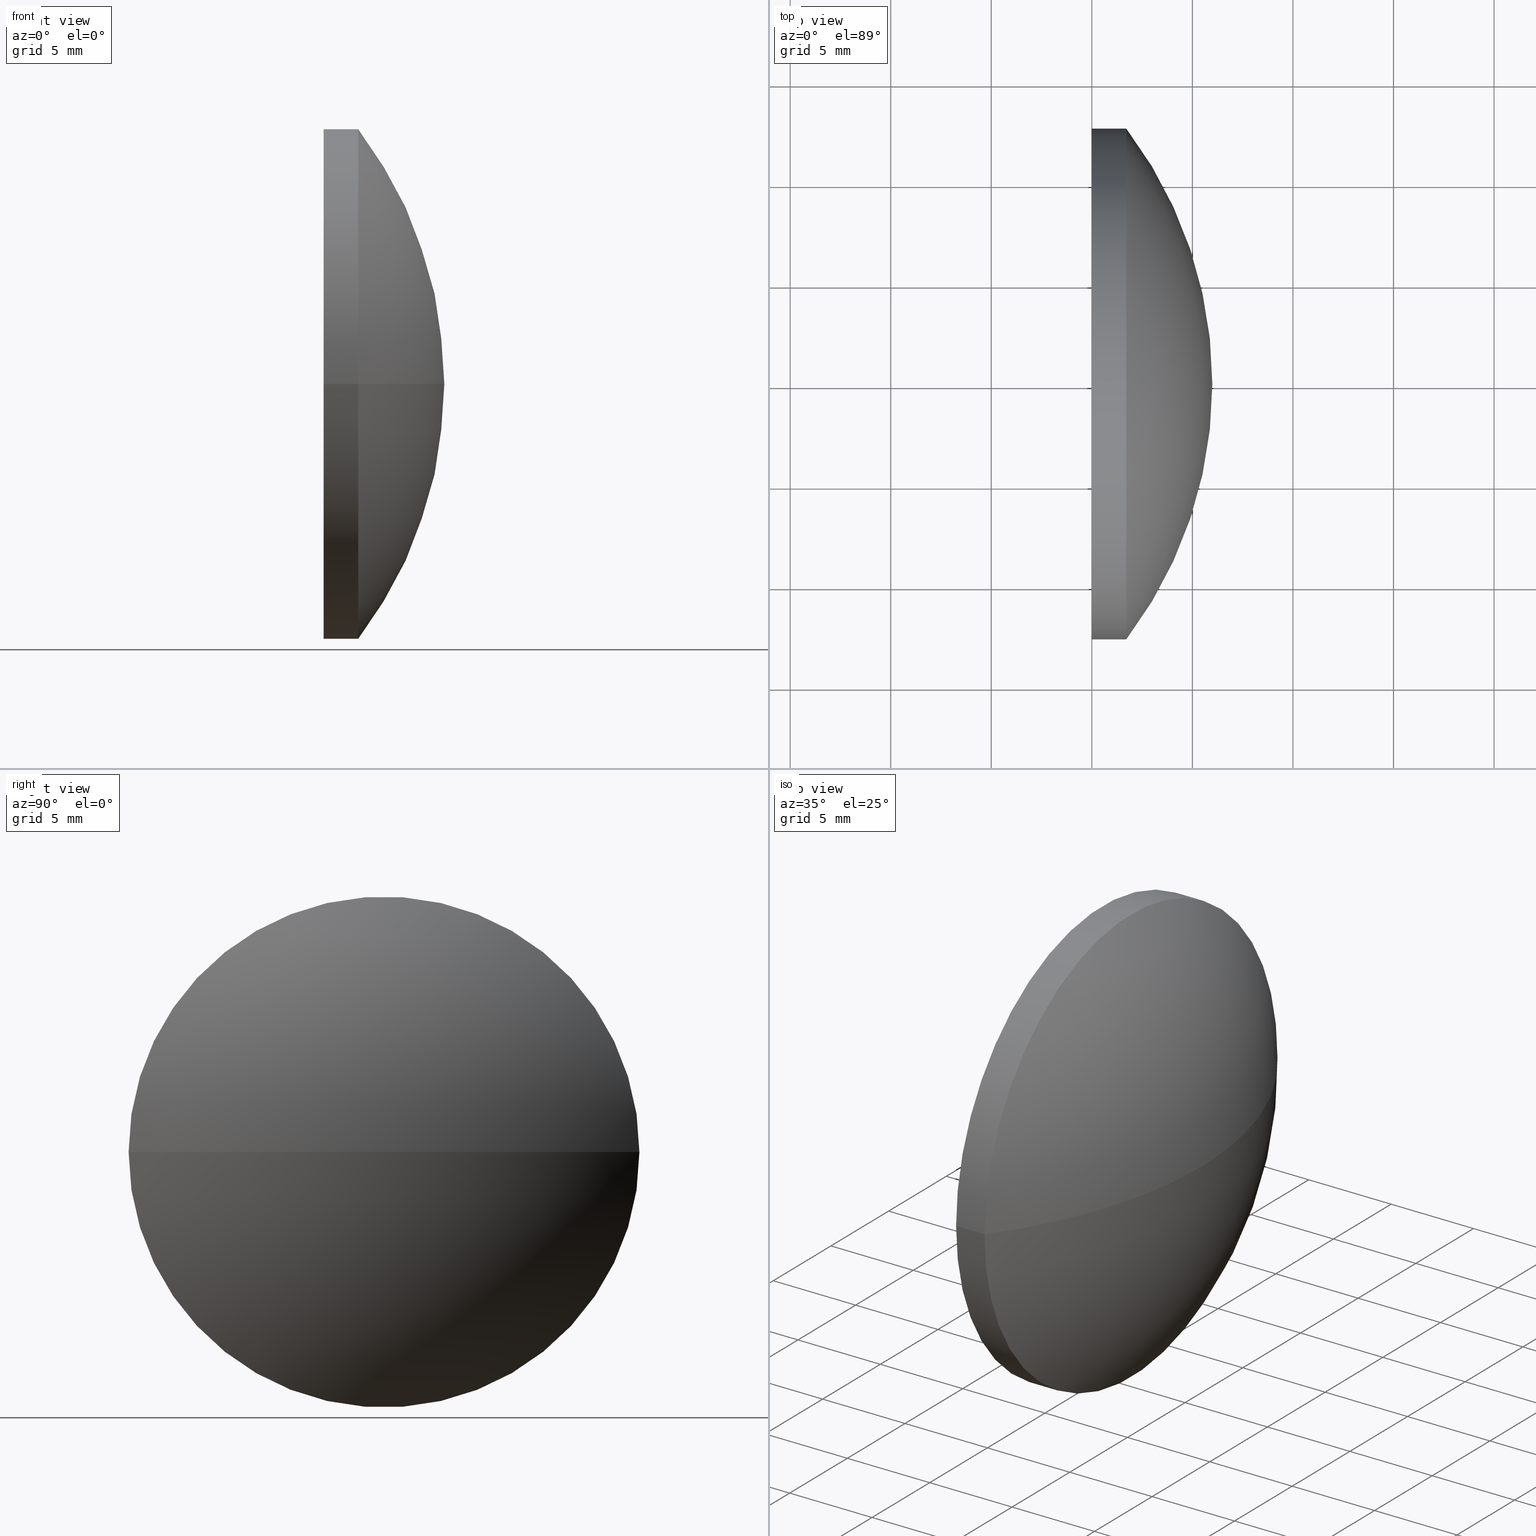
[diagram: canonical four-view strip — front | top / right | iso, engineering-drawing reading convention]
A machine part, canonical four-view strip (front | top / right | iso — engineering-drawing reading convention). The complete STEP part file that produces these views, byte-faithful:
ISO-10303-21;
HEADER;
FILE_DESCRIPTION (( 'STEP AP214' ),
    '1' );
FILE_NAME ('140489.STEP',
    '2022-03-25T05:55:26',
    ( '' ),
    ( '' ),
    'SwSTEP 2.0',
    'SolidWorks 2020',
    '' );
FILE_SCHEMA (( 'AUTOMOTIVE_DESIGN' ));
ENDSEC;

DATA;
#1 =( NAMED_UNIT ( * ) SI_UNIT ( $, .STERADIAN. ) SOLID_ANGLE_UNIT ( ) );
#2 = ORIENTED_EDGE ( 'NONE', *, *, #66, .T. ) ;
#3 = SURFACE_SIDE_STYLE ('',( #13 ) ) ;
#4 = CIRCLE ( 'NONE', #156, 20.99175099999987637 ) ;
#5 = ORIENTED_EDGE ( 'NONE', *, *, #100, .T. ) ;
#6 = ADVANCED_FACE ( 'NONE', ( #146 ), #148, .T. ) ;
#7 = DIRECTION ( 'NONE',  ( 0.000000000000000000, 1.000000000000000000, 1.224646799147353207E-16 ) ) ;
#8 = AXIS2_PLACEMENT_3D ( 'NONE', #98, #165, #154 ) ;
#9 = CYLINDRICAL_SURFACE ( 'NONE', #122, 12.70000005648259922 ) ;
#10 = APPLICATION_CONTEXT ( 'automotive_design' ) ;
#11 = CARTESIAN_POINT ( 'NONE',  ( 14.99175100000010197, 12.70000005648238961, 1.555301441834262913E-15 ) ) ;
#12 = MANIFOLD_SOLID_BREP ( '��ת3', #75 ) ;
#13 = SURFACE_STYLE_FILL_AREA ( #103 ) ;
#14 =( LENGTH_UNIT ( ) NAMED_UNIT ( * ) SI_UNIT ( .MILLI., .METRE. ) );
#15 = DIRECTION ( 'NONE',  ( -1.000000000000000000, 1.322213454972335606E-14, -0.000000000000000000 ) ) ;
#16 = VERTEX_POINT ( 'NONE', #42 ) ;
#17 = CARTESIAN_POINT ( 'NONE',  ( 14.99175099999976446, -12.70000005648278751, 0.000000000000000000 ) ) ;
#18 = SURFACE_SIDE_STYLE ('',( #81 ) ) ;
#19 = DIRECTION ( 'NONE',  ( -1.000000000000000000, 1.322213454972335606E-14, -0.000000000000000000 ) ) ;
#20 =( NAMED_UNIT ( * ) PLANE_ANGLE_UNIT ( ) SI_UNIT ( $, .RADIAN. ) );
#21 = DIRECTION ( 'NONE',  ( -1.000000000000000000, 1.322213454972335606E-14, -0.000000000000000000 ) ) ;
#22 = DIRECTION ( 'NONE',  ( -1.000000000000000000, 1.322213454972335606E-14, -0.000000000000000000 ) ) ;
#23 = VECTOR ( 'NONE', #149, 1000.000000000000000 ) ;
#24 = ORIENTED_EDGE ( 'NONE', *, *, #110, .F. ) ;
#25 = VERTEX_POINT ( 'NONE', #135 ) ;
#26 = ORIENTED_EDGE ( 'NONE', *, *, #144, .T. ) ;
#27 = DIRECTION ( 'NONE',  ( 1.322213454972335606E-14, 1.000000000000000000, 0.000000000000000000 ) ) ;
#28 = CARTESIAN_POINT ( 'NONE',  ( 16.71417388360379164, 12.70000005648239139, 0.000000000000000000 ) ) ;
#29 = PRESENTATION_LAYER_ASSIGNMENT (  '', '', ( #43 ) ) ;
#30 = EDGE_LOOP ( 'NONE', ( #5, #88 ) ) ;
#31 = PRODUCT_DEFINITION ( 'δ֪', '', #64, #57 ) ;
#32 =( NAMED_UNIT ( * ) SI_UNIT ( $, .STERADIAN. ) SOLID_ANGLE_UNIT ( ) );
#33 = FILL_AREA_STYLE ('',( #62 ) ) ;
#34 = ADVANCED_BREP_SHAPE_REPRESENTATION ( '140489', ( #12, #8 ), #152 ) ;
#35 =( NAMED_UNIT ( * ) PLANE_ANGLE_UNIT ( ) SI_UNIT ( $, .RADIAN. ) );
#36 = CIRCLE ( 'NONE', #89, 20.99175099999987637 ) ;
#37 = ORIENTED_EDGE ( 'NONE', *, *, #166, .T. ) ;
#38 = FACE_OUTER_BOUND ( 'NONE', #143, .T. ) ;
#39 = CARTESIAN_POINT ( 'NONE',  ( 0.000000000000000000, 0.000000000000000000, 0.000000000000000000 ) ) ;
#40 = VECTOR ( 'NONE', #58, 1000.000000000000000 ) ;
#41 = ADVANCED_FACE ( 'NONE', ( #157 ), #117, .T. ) ;
#42 = CARTESIAN_POINT ( 'NONE',  ( 20.99175099999987637, -2.762703821227557815E-13, 0.000000000000000000 ) ) ;
#43 = STYLED_ITEM ( 'NONE', ( #67 ), #12 ) ;
#44 = CARTESIAN_POINT ( 'NONE',  ( 1.679211095283071421E-13, 12.70000005648259922, 1.555301441834262125E-15 ) ) ;
#45 = AXIS2_PLACEMENT_3D ( 'NONE', #162, #22, #49 ) ;
#46 = DIRECTION ( 'NONE',  ( -1.000000000000000000, 1.322213454972335606E-14, -0.000000000000000000 ) ) ;
#47 =( LENGTH_UNIT ( ) NAMED_UNIT ( * ) SI_UNIT ( .MILLI., .METRE. ) );
#48 =( NAMED_UNIT ( * ) SI_UNIT ( $, .STERADIAN. ) SOLID_ANGLE_UNIT ( ) );
#49 = DIRECTION ( 'NONE',  ( -1.324946271034538149E-14, -1.000000000000000000, 0.000000000000000000 ) ) ;
#50 =( GEOMETRIC_REPRESENTATION_CONTEXT ( 3 ) GLOBAL_UNCERTAINTY_ASSIGNED_CONTEXT ( ( #60 ) ) GLOBAL_UNIT_ASSIGNED_CONTEXT ( ( #14, #56, #1 ) ) REPRESENTATION_CONTEXT ( 'NONE', 'WORKASPACE' ) );
#51 = ORIENTED_EDGE ( 'NONE', *, *, #104, .T. ) ;
#52 = ADVANCED_FACE ( 'NONE', ( #38 ), #145, .T. ) ;
#53 = DIRECTION ( 'NONE',  ( -1.322213454972335606E-14, -1.000000000000000000, 0.000000000000000000 ) ) ;
#54 = DIRECTION ( 'NONE',  ( -1.000000000000000000, 1.322213454972335606E-14, 0.000000000000000000 ) ) ;
#55 = DIRECTION ( 'NONE',  ( 0.000000000000000000, 0.000000000000000000, 1.000000000000000000 ) ) ;
#56 =( NAMED_UNIT ( * ) PLANE_ANGLE_UNIT ( ) SI_UNIT ( $, .RADIAN. ) );
#57 = PRODUCT_DEFINITION_CONTEXT ( 'detailed design', #10, 'design' ) ;
#58 = DIRECTION ( 'NONE',  ( -1.000000000000000000, 1.322213454972335606E-14, -0.000000000000000000 ) ) ;
#59 = LINE ( 'NONE', #44, #40 ) ;
#60 = UNCERTAINTY_MEASURE_WITH_UNIT (LENGTH_MEASURE( 1.000000000000000082E-05 ), #14, 'distance_accuracy_value', 'NONE');
#61 = DIRECTION ( 'NONE',  ( 1.619244475421433971E-30, 1.224646799147353207E-16, -1.000000000000000000 ) ) ;
#62 = FILL_AREA_STYLE_COLOUR ( '', #87 ) ;
#63 = CARTESIAN_POINT ( 'NONE',  ( 0.000000000000000000, 0.000000000000000000, 0.000000000000000000 ) ) ;
#64 = PRODUCT_DEFINITION_FORMATION_WITH_SPECIFIED_SOURCE ( '�κ�', '', #136, .NOT_KNOWN. ) ;
#65 = APPLICATION_CONTEXT ( 'automotive_design' ) ;
#66 = EDGE_CURVE ( 'NONE', #25, #76, #158, .T. ) ;
#67 = PRESENTATION_STYLE_ASSIGNMENT (( #102 ) ) ;
#68 = CIRCLE ( 'NONE', #84, 12.70000005648261165 ) ;
#69 = DIRECTION ( 'NONE',  ( -1.324946271034538149E-14, -1.000000000000000000, 0.000000000000000000 ) ) ;
#70 = ORIENTED_EDGE ( 'NONE', *, *, #110, .T. ) ;
#71 = CARTESIAN_POINT ( 'NONE',  ( 0.000000000000000000, 0.000000000000000000, 0.000000000000000000 ) ) ;
#72 = PRODUCT_DEFINITION_SHAPE ( 'NONE', 'NONE',  #31 ) ;
#73 = PRESENTATION_STYLE_ASSIGNMENT (( #83 ) ) ;
#74 = AXIS2_PLACEMENT_3D ( 'NONE', #96, #150, #109 ) ;
#75 = CLOSED_SHELL ( 'NONE', ( #128, #52, #6, #163, #41 ) ) ;
#76 = VERTEX_POINT ( 'NONE', #17 ) ;
#77 = ORIENTED_EDGE ( 'NONE', *, *, #116, .F. ) ;
#78 =( GEOMETRIC_REPRESENTATION_CONTEXT ( 3 ) GLOBAL_UNCERTAINTY_ASSIGNED_CONTEXT ( ( #113 ) ) GLOBAL_UNIT_ASSIGNED_CONTEXT ( ( #47, #35, #48 ) ) REPRESENTATION_CONTEXT ( 'NONE', 'WORKASPACE' ) );
#79 = CARTESIAN_POINT ( 'NONE',  ( -1.679211095283071421E-13, -12.70000005648259922, 0.000000000000000000 ) ) ;
#80 = UNCERTAINTY_MEASURE_WITH_UNIT (LENGTH_MEASURE( 1.000000000000000082E-05 ), #107, 'distance_accuracy_value', 'NONE');
#81 = SURFACE_STYLE_FILL_AREA ( #33 ) ;
#82 = PRODUCT_RELATED_PRODUCT_CATEGORY ( 'part', '', ( #136 ) ) ;
#83 = SURFACE_STYLE_USAGE ( .BOTH. , #18 ) ;
#84 = AXIS2_PLACEMENT_3D ( 'NONE', #164, #19, #137 ) ;
#85 = CARTESIAN_POINT ( 'NONE',  ( 16.71417388360362821, -2.209970559764793155E-13, 0.000000000000000000 ) ) ;
#86 = DIRECTION ( 'NONE',  ( -1.322213454972335606E-14, -1.000000000000000000, 0.000000000000000000 ) ) ;
#87 = COLOUR_RGB ( '',1.000000000000000000, 1.000000000000000000, 1.000000000000000000 ) ;
#88 = ORIENTED_EDGE ( 'NONE', *, *, #116, .T. ) ;
#89 = AXIS2_PLACEMENT_3D ( 'NONE', #161, #61, #7 ) ;
#90 = EDGE_LOOP ( 'NONE', ( #70, #26, #112, #130 ) ) ;
#91 = DIRECTION ( 'NONE',  ( 1.000000000000000000, 0.000000000000000000, 0.000000000000000000 ) ) ;
#92 = AXIS2_PLACEMENT_3D ( 'NONE', #39, #118, #27 ) ;
#93 = CARTESIAN_POINT ( 'NONE',  ( 0.000000000000000000, 0.000000000000000000, 0.000000000000000000 ) ) ;
#94 = FACE_OUTER_BOUND ( 'NONE', #160, .T. ) ;
#95 = PRESENTATION_LAYER_ASSIGNMENT (  '', '', ( #139 ) ) ;
#96 = CARTESIAN_POINT ( 'NONE',  ( 0.000000000000000000, 0.000000000000000000, 0.000000000000000000 ) ) ;
#97 = COLOUR_RGB ( '',1.000000000000000000, 1.000000000000000000, 1.000000000000000000 ) ;
#98 = CARTESIAN_POINT ( 'NONE',  ( 0.000000000000000000, 0.000000000000000000, 0.000000000000000000 ) ) ;
#99 = ORIENTED_EDGE ( 'NONE', *, *, #104, .F. ) ;
#100 = EDGE_CURVE ( 'NONE', #76, #124, #115, .T. ) ;
#101 = CIRCLE ( 'NONE', #45, 12.70000005648258856 ) ;
#102 = SURFACE_STYLE_USAGE ( .BOTH. , #3 ) ;
#103 = FILL_AREA_STYLE ('',( #120 ) ) ;
#104 = EDGE_CURVE ( 'NONE', #16, #105, #4, .T. ) ;
#105 = VERTEX_POINT ( 'NONE', #28 ) ;
#106 = MECHANICAL_DESIGN_GEOMETRIC_PRESENTATION_REPRESENTATION (  '', ( #43 ), #50 ) ;
#107 =( LENGTH_UNIT ( ) NAMED_UNIT ( * ) SI_UNIT ( .MILLI., .METRE. ) );
#108 = DIRECTION ( 'NONE',  ( -1.311287031126963176E-14, -1.000000000000000000, 0.000000000000000000 ) ) ;
#109 = DIRECTION ( 'NONE',  ( 1.322213454972335606E-14, 1.000000000000000000, 0.000000000000000000 ) ) ;
#110 = EDGE_CURVE ( 'NONE', #25, #105, #68, .T. ) ;
#111 = APPLICATION_PROTOCOL_DEFINITION ( 'draft international standard', 'automotive_design', 1998, #10 ) ;
#112 = ORIENTED_EDGE ( 'NONE', *, *, #100, .F. ) ;
#113 = UNCERTAINTY_MEASURE_WITH_UNIT (LENGTH_MEASURE( 1.000000000000000082E-05 ), #47, 'distance_accuracy_value', 'NONE');
#114 = AXIS2_PLACEMENT_3D ( 'NONE', #127, #54, #53 ) ;
#115 = CIRCLE ( 'NONE', #147, 12.70000005648258856 ) ;
#116 = EDGE_CURVE ( 'NONE', #124, #76, #101, .T. ) ;
#117 = CYLINDRICAL_SURFACE ( 'NONE', #131, 12.70000005648259922 ) ;
#118 = DIRECTION ( 'NONE',  ( 0.000000000000000000, 0.000000000000000000, -1.000000000000000000 ) ) ;
#119 = DIRECTION ( 'NONE',  ( -1.322213454972335606E-14, -1.000000000000000000, 0.000000000000000000 ) ) ;
#120 = FILL_AREA_STYLE_COLOUR ( '', #97 ) ;
#121 = FACE_OUTER_BOUND ( 'NONE', #90, .T. ) ;
#122 = AXIS2_PLACEMENT_3D ( 'NONE', #63, #21, #86 ) ;
#123 = APPLICATION_PROTOCOL_DEFINITION ( 'draft international standard', 'automotive_design', 1998, #65 ) ;
#124 = VERTEX_POINT ( 'NONE', #11 ) ;
#125 = SHAPE_DEFINITION_REPRESENTATION ( #72, #34 ) ;
#126 = ORIENTED_EDGE ( 'NONE', *, *, #144, .F. ) ;
#127 = CARTESIAN_POINT ( 'NONE',  ( 14.99175100000001848, 1.110137751961024635E-27, 0.000000000000000000 ) ) ;
#128 = ADVANCED_FACE ( 'NONE', ( #121 ), #9, .T. ) ;
#129 = AXIS2_PLACEMENT_3D ( 'NONE', #85, #46, #108 ) ;
#130 = ORIENTED_EDGE ( 'NONE', *, *, #66, .F. ) ;
#131 = AXIS2_PLACEMENT_3D ( 'NONE', #93, #133, #119 ) ;
#132 = CARTESIAN_POINT ( 'NONE',  ( 14.99175099999993321, -1.982229488579487999E-13, 0.000000000000000000 ) ) ;
#133 = DIRECTION ( 'NONE',  ( -1.000000000000000000, 1.322213454972335606E-14, -0.000000000000000000 ) ) ;
#134 = MECHANICAL_DESIGN_GEOMETRIC_PRESENTATION_REPRESENTATION (  '', ( #139 ), #78 ) ;
#135 = CARTESIAN_POINT ( 'NONE',  ( 16.71417388360346123, -12.70000005648283370, -1.555301441834263505E-15 ) ) ;
#136 = PRODUCT ( '140489', '140489', '', ( #153 ) ) ;
#137 = DIRECTION ( 'NONE',  ( -1.311287031126963176E-14, -1.000000000000000000, 0.000000000000000000 ) ) ;
#138 = SPHERICAL_SURFACE ( 'NONE', #74, 20.99175099999987637 ) ;
#139 = STYLED_ITEM ( 'NONE', ( #73 ), #34 ) ;
#140 = EDGE_LOOP ( 'NONE', ( #126, #37, #2, #77 ) ) ;
#141 = CIRCLE ( 'NONE', #129, 12.70000005648261165 ) ;
#142 = ORIENTED_EDGE ( 'NONE', *, *, #151, .T. ) ;
#143 = EDGE_LOOP ( 'NONE', ( #99, #142, #155 ) ) ;
#144 = EDGE_CURVE ( 'NONE', #105, #124, #59, .T. ) ;
#145 = SPHERICAL_SURFACE ( 'NONE', #92, 20.99175099999987637 ) ;
#146 = FACE_OUTER_BOUND ( 'NONE', #30, .T. ) ;
#147 = AXIS2_PLACEMENT_3D ( 'NONE', #132, #15, #69 ) ;
#148 = PLANE ( 'NONE',  #114 ) ;
#149 = DIRECTION ( 'NONE',  ( -1.000000000000000000, 1.322213454972335606E-14, -0.000000000000000000 ) ) ;
#150 = DIRECTION ( 'NONE',  ( 0.000000000000000000, 0.000000000000000000, -1.000000000000000000 ) ) ;
#151 = EDGE_CURVE ( 'NONE', #16, #25, #36, .T. ) ;
#152 =( GEOMETRIC_REPRESENTATION_CONTEXT ( 3 ) GLOBAL_UNCERTAINTY_ASSIGNED_CONTEXT ( ( #80 ) ) GLOBAL_UNIT_ASSIGNED_CONTEXT ( ( #107, #20, #32 ) ) REPRESENTATION_CONTEXT ( 'NONE', 'WORKASPACE' ) );
#153 = PRODUCT_CONTEXT ( 'NONE', #65, 'mechanical' ) ;
#154 = DIRECTION ( 'NONE',  ( 1.000000000000000000, 0.000000000000000000, 0.000000000000000000 ) ) ;
#155 = ORIENTED_EDGE ( 'NONE', *, *, #166, .F. ) ;
#156 = AXIS2_PLACEMENT_3D ( 'NONE', #71, #55, #91 ) ;
#157 = FACE_OUTER_BOUND ( 'NONE', #140, .T. ) ;
#158 = LINE ( 'NONE', #79, #23 ) ;
#159 = ORIENTED_EDGE ( 'NONE', *, *, #151, .F. ) ;
#160 = EDGE_LOOP ( 'NONE', ( #159, #51, #24 ) ) ;
#161 = CARTESIAN_POINT ( 'NONE',  ( 0.000000000000000000, 0.000000000000000000, 0.000000000000000000 ) ) ;
#162 = CARTESIAN_POINT ( 'NONE',  ( 14.99175099999993321, -1.982229488579487999E-13, 0.000000000000000000 ) ) ;
#163 = ADVANCED_FACE ( 'NONE', ( #94 ), #138, .T. ) ;
#164 = CARTESIAN_POINT ( 'NONE',  ( 16.71417388360362821, -2.209970559764793155E-13, 0.000000000000000000 ) ) ;
#165 = DIRECTION ( 'NONE',  ( 0.000000000000000000, 0.000000000000000000, 1.000000000000000000 ) ) ;
#166 = EDGE_CURVE ( 'NONE', #105, #25, #141, .T. ) ;
ENDSEC;
END-ISO-10303-21;
